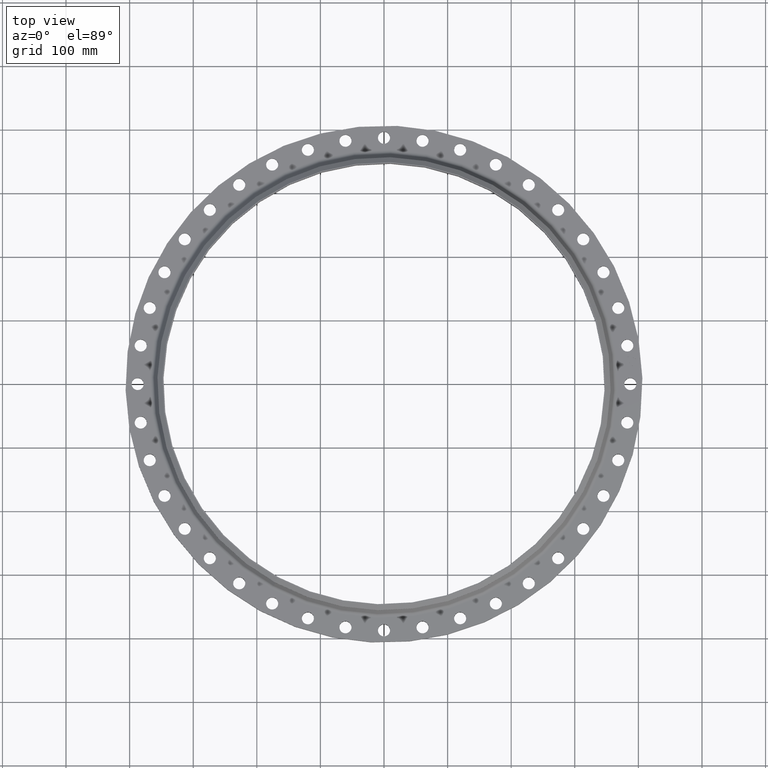
[diagram: clean part render]
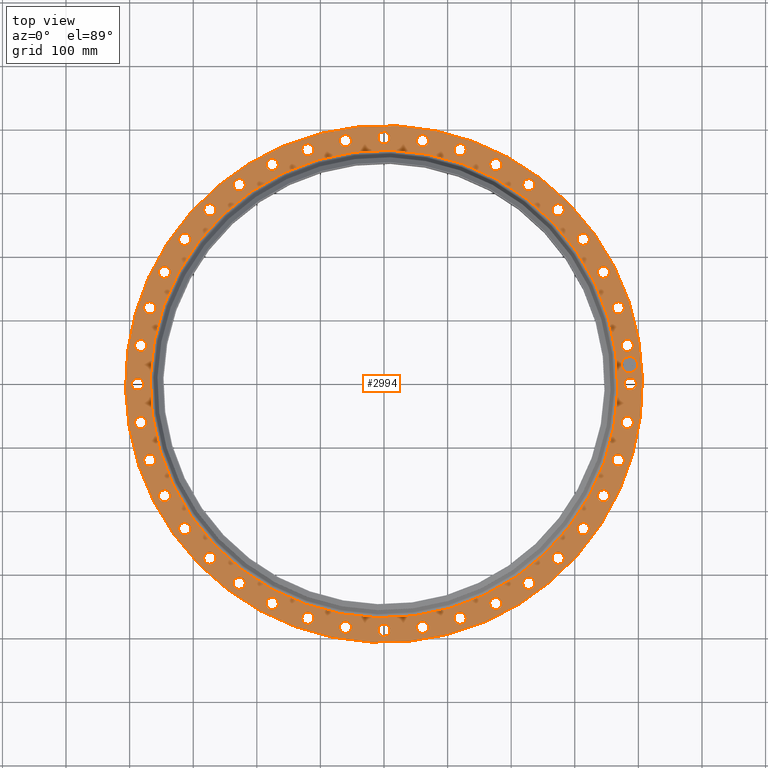
[diagram: same view with one face highlighted and labeled with its STEP entity id]
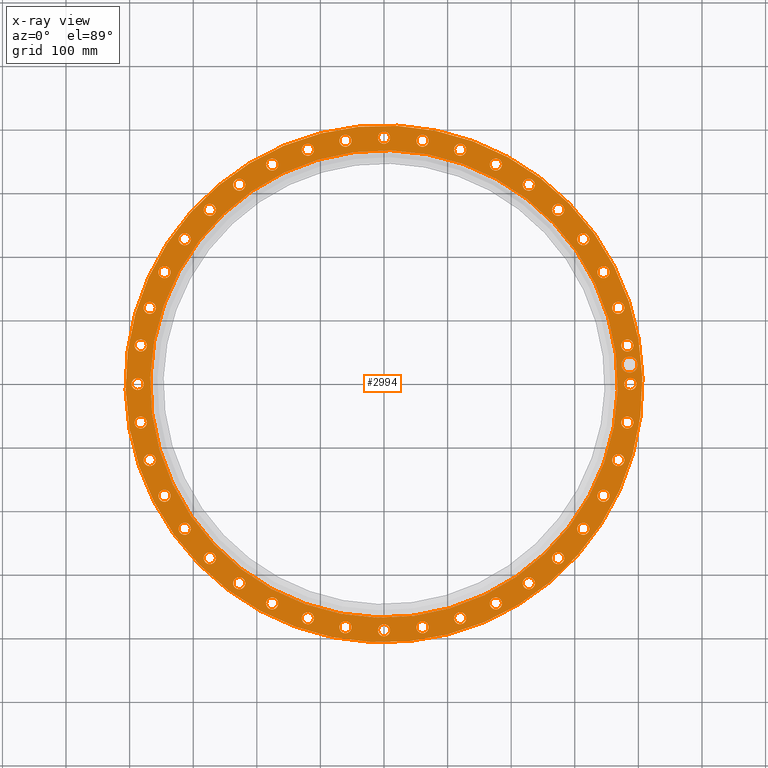
[diagram: x-ray of the same camera — body ghosted, the highlighted face saturated]
A machine part, top view. The second image highlights one B-rep face of the part: STEP entity #2994.
The next image is the same camera in x-ray: the body ghosted, the highlighted face saturated — about 0% of this face is hidden behind the body in this view.
In plain terms, the highlighted planar face has unit normal (0, 0, -1).
Its self-contained STEP definition (entity closure, byte-faithful):
#65=AXIS2_PLACEMENT_3D('Circle Axis2P3D',#63,#64,$) ;
#82=AXIS2_PLACEMENT_3D('Circle Axis2P3D',#80,#81,$) ;
#115=AXIS2_PLACEMENT_3D('Circle Axis2P3D',#113,#114,$) ;
#139=AXIS2_PLACEMENT_3D('Circle Axis2P3D',#137,#138,$) ;
#156=AXIS2_PLACEMENT_3D('Circle Axis2P3D',#154,#155,$) ;
#191=AXIS2_PLACEMENT_3D('Circle Axis2P3D',#189,#190,$) ;
#1147=AXIS2_PLACEMENT_3D('Circle Axis2P3D',#1145,#1146,$) ;
#1159=AXIS2_PLACEMENT_3D('Circle Axis2P3D',#1157,#1158,$) ;
#1190=AXIS2_PLACEMENT_3D('Circle Axis2P3D',#1188,#1189,$) ;
#1202=AXIS2_PLACEMENT_3D('Circle Axis2P3D',#1200,#1201,$) ;
#1233=AXIS2_PLACEMENT_3D('Circle Axis2P3D',#1231,#1232,$) ;
#1245=AXIS2_PLACEMENT_3D('Circle Axis2P3D',#1243,#1244,$) ;
#1276=AXIS2_PLACEMENT_3D('Circle Axis2P3D',#1274,#1275,$) ;
#1288=AXIS2_PLACEMENT_3D('Circle Axis2P3D',#1286,#1287,$) ;
#1319=AXIS2_PLACEMENT_3D('Circle Axis2P3D',#1317,#1318,$) ;
#1331=AXIS2_PLACEMENT_3D('Circle Axis2P3D',#1329,#1330,$) ;
#1362=AXIS2_PLACEMENT_3D('Circle Axis2P3D',#1360,#1361,$) ;
#1374=AXIS2_PLACEMENT_3D('Circle Axis2P3D',#1372,#1373,$) ;
#1405=AXIS2_PLACEMENT_3D('Circle Axis2P3D',#1403,#1404,$) ;
#1417=AXIS2_PLACEMENT_3D('Circle Axis2P3D',#1415,#1416,$) ;
#1448=AXIS2_PLACEMENT_3D('Circle Axis2P3D',#1446,#1447,$) ;
#1460=AXIS2_PLACEMENT_3D('Circle Axis2P3D',#1458,#1459,$) ;
#1491=AXIS2_PLACEMENT_3D('Circle Axis2P3D',#1489,#1490,$) ;
#1503=AXIS2_PLACEMENT_3D('Circle Axis2P3D',#1501,#1502,$) ;
#1534=AXIS2_PLACEMENT_3D('Circle Axis2P3D',#1532,#1533,$) ;
#1546=AXIS2_PLACEMENT_3D('Circle Axis2P3D',#1544,#1545,$) ;
#1577=AXIS2_PLACEMENT_3D('Circle Axis2P3D',#1575,#1576,$) ;
#1589=AXIS2_PLACEMENT_3D('Circle Axis2P3D',#1587,#1588,$) ;
#1620=AXIS2_PLACEMENT_3D('Circle Axis2P3D',#1618,#1619,$) ;
#1632=AXIS2_PLACEMENT_3D('Circle Axis2P3D',#1630,#1631,$) ;
#1663=AXIS2_PLACEMENT_3D('Circle Axis2P3D',#1661,#1662,$) ;
#1675=AXIS2_PLACEMENT_3D('Circle Axis2P3D',#1673,#1674,$) ;
#1706=AXIS2_PLACEMENT_3D('Circle Axis2P3D',#1704,#1705,$) ;
#1718=AXIS2_PLACEMENT_3D('Circle Axis2P3D',#1716,#1717,$) ;
#1749=AXIS2_PLACEMENT_3D('Circle Axis2P3D',#1747,#1748,$) ;
#1761=AXIS2_PLACEMENT_3D('Circle Axis2P3D',#1759,#1760,$) ;
#1792=AXIS2_PLACEMENT_3D('Circle Axis2P3D',#1790,#1791,$) ;
#1804=AXIS2_PLACEMENT_3D('Circle Axis2P3D',#1802,#1803,$) ;
#1835=AXIS2_PLACEMENT_3D('Circle Axis2P3D',#1833,#1834,$) ;
#1847=AXIS2_PLACEMENT_3D('Circle Axis2P3D',#1845,#1846,$) ;
#1878=AXIS2_PLACEMENT_3D('Circle Axis2P3D',#1876,#1877,$) ;
#1890=AXIS2_PLACEMENT_3D('Circle Axis2P3D',#1888,#1889,$) ;
#1921=AXIS2_PLACEMENT_3D('Circle Axis2P3D',#1919,#1920,$) ;
#1933=AXIS2_PLACEMENT_3D('Circle Axis2P3D',#1931,#1932,$) ;
#1964=AXIS2_PLACEMENT_3D('Circle Axis2P3D',#1962,#1963,$) ;
#1976=AXIS2_PLACEMENT_3D('Circle Axis2P3D',#1974,#1975,$) ;
#2007=AXIS2_PLACEMENT_3D('Circle Axis2P3D',#2005,#2006,$) ;
#2019=AXIS2_PLACEMENT_3D('Circle Axis2P3D',#2017,#2018,$) ;
#2050=AXIS2_PLACEMENT_3D('Circle Axis2P3D',#2048,#2049,$) ;
#2062=AXIS2_PLACEMENT_3D('Circle Axis2P3D',#2060,#2061,$) ;
#2093=AXIS2_PLACEMENT_3D('Circle Axis2P3D',#2091,#2092,$) ;
#2105=AXIS2_PLACEMENT_3D('Circle Axis2P3D',#2103,#2104,$) ;
#2136=AXIS2_PLACEMENT_3D('Circle Axis2P3D',#2134,#2135,$) ;
#2148=AXIS2_PLACEMENT_3D('Circle Axis2P3D',#2146,#2147,$) ;
#2179=AXIS2_PLACEMENT_3D('Circle Axis2P3D',#2177,#2178,$) ;
#2191=AXIS2_PLACEMENT_3D('Circle Axis2P3D',#2189,#2190,$) ;
#2222=AXIS2_PLACEMENT_3D('Circle Axis2P3D',#2220,#2221,$) ;
#2234=AXIS2_PLACEMENT_3D('Circle Axis2P3D',#2232,#2233,$) ;
#2265=AXIS2_PLACEMENT_3D('Circle Axis2P3D',#2263,#2264,$) ;
#2277=AXIS2_PLACEMENT_3D('Circle Axis2P3D',#2275,#2276,$) ;
#2308=AXIS2_PLACEMENT_3D('Circle Axis2P3D',#2306,#2307,$) ;
#2320=AXIS2_PLACEMENT_3D('Circle Axis2P3D',#2318,#2319,$) ;
#2351=AXIS2_PLACEMENT_3D('Circle Axis2P3D',#2349,#2350,$) ;
#2363=AXIS2_PLACEMENT_3D('Circle Axis2P3D',#2361,#2362,$) ;
#2394=AXIS2_PLACEMENT_3D('Circle Axis2P3D',#2392,#2393,$) ;
#2406=AXIS2_PLACEMENT_3D('Circle Axis2P3D',#2404,#2405,$) ;
#2437=AXIS2_PLACEMENT_3D('Circle Axis2P3D',#2435,#2436,$) ;
#2449=AXIS2_PLACEMENT_3D('Circle Axis2P3D',#2447,#2448,$) ;
#2480=AXIS2_PLACEMENT_3D('Circle Axis2P3D',#2478,#2479,$) ;
#2492=AXIS2_PLACEMENT_3D('Circle Axis2P3D',#2490,#2491,$) ;
#2523=AXIS2_PLACEMENT_3D('Circle Axis2P3D',#2521,#2522,$) ;
#2535=AXIS2_PLACEMENT_3D('Circle Axis2P3D',#2533,#2534,$) ;
#2566=AXIS2_PLACEMENT_3D('Circle Axis2P3D',#2564,#2565,$) ;
#2578=AXIS2_PLACEMENT_3D('Circle Axis2P3D',#2576,#2577,$) ;
#2609=AXIS2_PLACEMENT_3D('Circle Axis2P3D',#2607,#2608,$) ;
#2621=AXIS2_PLACEMENT_3D('Circle Axis2P3D',#2619,#2620,$) ;
#2652=AXIS2_PLACEMENT_3D('Circle Axis2P3D',#2650,#2651,$) ;
#2664=AXIS2_PLACEMENT_3D('Circle Axis2P3D',#2662,#2663,$) ;
#2695=AXIS2_PLACEMENT_3D('Circle Axis2P3D',#2693,#2694,$) ;
#2707=AXIS2_PLACEMENT_3D('Circle Axis2P3D',#2705,#2706,$) ;
#2738=AXIS2_PLACEMENT_3D('Circle Axis2P3D',#2736,#2737,$) ;
#2750=AXIS2_PLACEMENT_3D('Circle Axis2P3D',#2748,#2749,$) ;
#2781=AXIS2_PLACEMENT_3D('Circle Axis2P3D',#2779,#2780,$) ;
#2793=AXIS2_PLACEMENT_3D('Circle Axis2P3D',#2791,#2792,$) ;
#2806=AXIS2_PLACEMENT_3D('Plane Axis2P3D',#2803,#2804,#2805) ;
#2978=AXIS2_PLACEMENT_3D('Circle Axis2P3D',#2976,#2977,$) ;
#2987=AXIS2_PLACEMENT_3D('Circle Axis2P3D',#2985,#2986,$) ;
#46=CARTESIAN_POINT('Vertex',(14.9209065394,0.179784576977,1.25000000001)) ;
#60=CARTESIAN_POINT('Vertex',(15.5790934608,-0.179784576977,1.25000000001)) ;
#63=CARTESIAN_POINT('Axis2P3D Location',(15.2500000001,0.,1.25000000001)) ;
#80=CARTESIAN_POINT('Axis2P3D Location',(15.2500000001,0.,1.25000000001)) ;
#110=CARTESIAN_POINT('Vertex',(-7.6708086177,-14.0413209903,1.25000000001)) ;
#113=CARTESIAN_POINT('Axis2P3D Location',(0.,0.,1.25000000001)) ;
#117=CARTESIAN_POINT('Vertex',(7.6708086177,14.0413209903,1.25000000001)) ;
#137=CARTESIAN_POINT('Axis2P3D Location',(0.,0.,1.25000000001)) ;
#154=CARTESIAN_POINT('Axis2P3D Location',(0.,0.,1.25000000001)) ;
#158=CARTESIAN_POINT('Vertex',(6.93964355817,12.7029323263,1.25000000001)) ;
#160=CARTESIAN_POINT('Vertex',(-6.93964355817,-12.7029323263,1.25000000001)) ;
#189=CARTESIAN_POINT('Axis2P3D Location',(0.,0.,1.25000000001)) ;
#1135=CARTESIAN_POINT('Vertex',(-14.7653299241,2.1565729019,1.25000000001)) ;
#1142=CARTESIAN_POINT('Vertex',(-15.3591644641,2.61467828185,1.25000000001)) ;
#1145=CARTESIAN_POINT('Axis2P3D Location',(-15.0622471941,2.38562559187,1.25000000001)) ;
#1157=CARTESIAN_POINT('Axis2P3D Location',(-15.0622471941,2.38562559187,1.25000000001)) ;
#1178=CARTESIAN_POINT('Vertex',(14.2461818829,-4.43982839868,1.25000000001)) ;
#1185=CARTESIAN_POINT('Vertex',(14.7610418642,-4.9851899298,1.25000000001)) ;
#1188=CARTESIAN_POINT('Axis2P3D Location',(14.5036118736,-4.71250916424,1.25000000001)) ;
#1200=CARTESIAN_POINT('Axis2P3D Location',(14.5036118736,-4.71250916424,1.25000000001)) ;
#1221=CARTESIAN_POINT('Vertex',(-14.2461818829,4.43982839868,1.25000000001)) ;
#1228=CARTESIAN_POINT('Vertex',(-14.7610418642,4.9851899298,1.25000000001)) ;
#1231=CARTESIAN_POINT('Axis2P3D Location',(-14.5036118736,4.71250916424,1.25000000001)) ;
#1243=CARTESIAN_POINT('Axis2P3D Location',(-14.5036118736,4.71250916424,1.25000000001)) ;
#1264=CARTESIAN_POINT('Vertex',(13.3762455633,-6.61376058533,1.25000000001)) ;
#1271=CARTESIAN_POINT('Vertex',(13.7994534245,-7.23294965678,1.25000000001)) ;
#1274=CARTESIAN_POINT('Axis2P3D Location',(13.5878494939,-6.92335512106,1.25000000001)) ;
#1286=CARTESIAN_POINT('Axis2P3D Location',(13.5878494939,-6.92335512106,1.25000000001)) ;
#1307=CARTESIAN_POINT('Vertex',(-13.3762455633,6.61376058533,1.25000000001)) ;
#1314=CARTESIAN_POINT('Vertex',(-13.7994534245,7.23294965678,1.25000000001)) ;
#1317=CARTESIAN_POINT('Axis2P3D Location',(-13.5878494939,6.92335512106,1.25000000001)) ;
#1329=CARTESIAN_POINT('Axis2P3D Location',(-13.5878494939,6.92335512106,1.25000000001)) ;
#1350=CARTESIAN_POINT('Vertex',(12.1769416848,-8.62484003656,1.25000000001)) ;
#1357=CARTESIAN_POINT('Vertex',(12.4980766438,-9.30261015843,1.25000000001)) ;
#1360=CARTESIAN_POINT('Axis2P3D Location',(12.3375091643,-8.9637250975,1.25000000001)) ;
#1372=CARTESIAN_POINT('Axis2P3D Location',(12.3375091643,-8.9637250975,1.25000000001)) ;
#1393=CARTESIAN_POINT('Vertex',(-12.1769416848,8.62484003656,1.25000000001)) ;
#1400=CARTESIAN_POINT('Vertex',(-12.4980766438,9.30261015843,1.25000000001)) ;
#1403=CARTESIAN_POINT('Axis2P3D Location',(-12.3375091643,8.9637250975,1.25000000001)) ;
#1415=CARTESIAN_POINT('Axis2P3D Location',(-12.3375091643,8.9637250975,1.25000000001)) ;
#1436=CARTESIAN_POINT('Vertex',(10.677801089,-10.4235473019,1.25000000001)) ;
#1443=CARTESIAN_POINT('Vertex',(10.8889557373,-11.1432095244,1.25000000001)) ;
#1446=CARTESIAN_POINT('Axis2P3D Location',(10.7833784131,-10.7833784131,1.25000000001)) ;
#1458=CARTESIAN_POINT('Axis2P3D Location',(10.7833784131,-10.7833784131,1.25000000001)) ;
#1479=CARTESIAN_POINT('Vertex',(-10.677801089,10.4235473019,1.25000000001)) ;
#1486=CARTESIAN_POINT('Vertex',(-10.8889557373,11.1432095244,1.25000000001)) ;
#1489=CARTESIAN_POINT('Axis2P3D Location',(-10.7833784131,10.7833784131,1.25000000001)) ;
#1501=CARTESIAN_POINT('Axis2P3D Location',(-10.7833784131,10.7833784131,1.25000000001)) ;
#1522=CARTESIAN_POINT('Vertex',(8.91573759277,-11.9655922389,1.25000000001)) ;
#1529=CARTESIAN_POINT('Vertex',(9.01171260223,-12.7094260897,1.25000000001)) ;
#1532=CARTESIAN_POINT('Axis2P3D Location',(8.9637250975,-12.3375091643,1.25000000001)) ;
#1544=CARTESIAN_POINT('Axis2P3D Location',(8.9637250975,-12.3375091643,1.25000000001)) ;
#1565=CARTESIAN_POINT('Vertex',(-8.91573759277,11.9655922389,1.25000000001)) ;
#1572=CARTESIAN_POINT('Vertex',(-9.01171260223,12.7094260897,1.25000000001)) ;
#1575=CARTESIAN_POINT('Axis2P3D Location',(-8.9637250975,12.3375091643,1.25000000001)) ;
#1587=CARTESIAN_POINT('Axis2P3D Location',(-8.9637250975,12.3375091643,1.25000000001)) ;
#1608=CARTESIAN_POINT('Vertex',(6.9341390474,-13.2130045834,1.25000000001)) ;
#1615=CARTESIAN_POINT('Vertex',(6.91257119471,-13.9626944044,1.25000000001)) ;
#1618=CARTESIAN_POINT('Axis2P3D Location',(6.92335512106,-13.5878494939,1.25000000001)) ;
#1630=CARTESIAN_POINT('Axis2P3D Location',(6.92335512106,-13.5878494939,1.25000000001)) ;
#1651=CARTESIAN_POINT('Vertex',(-6.9341390474,13.2130045834,1.25000000001)) ;
#1658=CARTESIAN_POINT('Vertex',(-6.91257119471,13.9626944044,1.25000000001)) ;
#1661=CARTESIAN_POINT('Axis2P3D Location',(-6.92335512106,13.5878494939,1.25000000001)) ;
#1673=CARTESIAN_POINT('Axis2P3D Location',(-6.92335512106,13.5878494939,1.25000000001)) ;
#1694=CARTESIAN_POINT('Vertex',(4.7817989856,-14.1350689037,1.25000000001)) ;
#1701=CARTESIAN_POINT('Vertex',(4.64321934287,-14.8721548435,1.25000000001)) ;
#1704=CARTESIAN_POINT('Axis2P3D Location',(4.71250916424,-14.5036118736,1.25000000001)) ;
#1716=CARTESIAN_POINT('Axis2P3D Location',(4.71250916424,-14.5036118736,1.25000000001)) ;
#1737=CARTESIAN_POINT('Vertex',(-4.7817989856,14.1350689037,1.25000000001)) ;
#1744=CARTESIAN_POINT('Vertex',(-4.64321934287,14.8721548435,1.25000000001)) ;
#1747=CARTESIAN_POINT('Axis2P3D Location',(-4.71250916424,14.5036118736,1.25000000001)) ;
#1759=CARTESIAN_POINT('Axis2P3D Location',(-4.71250916424,14.5036118736,1.25000000001)) ;
#1780=CARTESIAN_POINT('Vertex',(2.5117151629,-14.7090809159,1.25000000001)) ;
#1787=CARTESIAN_POINT('Vertex',(2.25953602085,-15.4154134724,1.25000000001)) ;
#1790=CARTESIAN_POINT('Axis2P3D Location',(2.38562559187,-15.0622471941,1.25000000001)) ;
#1802=CARTESIAN_POINT('Axis2P3D Location',(2.38562559187,-15.0622471941,1.25000000001)) ;
#1823=CARTESIAN_POINT('Vertex',(-2.5117151629,14.7090809159,1.25000000001)) ;
#1830=CARTESIAN_POINT('Vertex',(-2.25953602085,15.4154134724,1.25000000001)) ;
#1833=CARTESIAN_POINT('Axis2P3D Location',(-2.38562559187,15.0622471941,1.25000000001)) ;
#1845=CARTESIAN_POINT('Axis2P3D Location',(-2.38562559187,15.0622471941,1.25000000001)) ;
#1866=CARTESIAN_POINT('Vertex',(0.179784576977,-14.9209065394,1.25000000001)) ;
#1873=CARTESIAN_POINT('Vertex',(-0.179784576977,-15.5790934608,1.25000000001)) ;
#1876=CARTESIAN_POINT('Axis2P3D Location',(4.31997340947E-015,-15.2500000001,1.25000000001)) ;
#1888=CARTESIAN_POINT('Axis2P3D Location',(4.31997340947E-015,-15.2500000001,1.25000000001)) ;
#1909=CARTESIAN_POINT('Vertex',(-0.179784576977,14.9209065394,1.25000000001)) ;
#1916=CARTESIAN_POINT('Vertex',(0.179784576977,15.5790934608,1.25000000001)) ;
#1919=CARTESIAN_POINT('Axis2P3D Location',(-1.41081705771E-014,15.2500000001,1.25000000001)) ;
#1931=CARTESIAN_POINT('Axis2P3D Location',(-1.41081705771E-014,15.2500000001,1.25000000001)) ;
#1952=CARTESIAN_POINT('Vertex',(-2.1565729019,-14.7653299241,1.25000000001)) ;
#1959=CARTESIAN_POINT('Vertex',(-2.61467828185,-15.3591644641,1.25000000001)) ;
#1962=CARTESIAN_POINT('Axis2P3D Location',(-2.38562559187,-15.0622471941,1.25000000001)) ;
#1974=CARTESIAN_POINT('Axis2P3D Location',(-2.38562559187,-15.0622471941,1.25000000001)) ;
#1995=CARTESIAN_POINT('Vertex',(2.1565729019,14.7653299241,1.25000000001)) ;
#2002=CARTESIAN_POINT('Vertex',(2.61467828185,15.3591644641,1.25000000001)) ;
#2005=CARTESIAN_POINT('Axis2P3D Location',(2.38562559187,15.0622471941,1.25000000001)) ;
#2017=CARTESIAN_POINT('Axis2P3D Location',(2.38562559187,15.0622471941,1.25000000001)) ;
#2038=CARTESIAN_POINT('Vertex',(-4.43982839868,-14.2461818829,1.25000000001)) ;
#2045=CARTESIAN_POINT('Vertex',(-4.9851899298,-14.7610418642,1.25000000001)) ;
#2048=CARTESIAN_POINT('Axis2P3D Location',(-4.71250916424,-14.5036118736,1.25000000001)) ;
#2060=CARTESIAN_POINT('Axis2P3D Location',(-4.71250916424,-14.5036118736,1.25000000001)) ;
#2081=CARTESIAN_POINT('Vertex',(4.43982839868,14.2461818829,1.25000000001)) ;
#2088=CARTESIAN_POINT('Vertex',(4.9851899298,14.7610418642,1.25000000001)) ;
#2091=CARTESIAN_POINT('Axis2P3D Location',(4.71250916424,14.5036118736,1.25000000001)) ;
#2103=CARTESIAN_POINT('Axis2P3D Location',(4.71250916424,14.5036118736,1.25000000001)) ;
#2124=CARTESIAN_POINT('Vertex',(-6.61376058533,-13.3762455633,1.25000000001)) ;
#2131=CARTESIAN_POINT('Vertex',(-7.23294965678,-13.7994534245,1.25000000001)) ;
#2134=CARTESIAN_POINT('Axis2P3D Location',(-6.92335512106,-13.5878494939,1.25000000001)) ;
#2146=CARTESIAN_POINT('Axis2P3D Location',(-6.92335512106,-13.5878494939,1.25000000001)) ;
#2167=CARTESIAN_POINT('Vertex',(6.61376058533,13.3762455633,1.25000000001)) ;
#2174=CARTESIAN_POINT('Vertex',(7.23294965678,13.7994534245,1.25000000001)) ;
#2177=CARTESIAN_POINT('Axis2P3D Location',(6.92335512106,13.5878494939,1.25000000001)) ;
#2189=CARTESIAN_POINT('Axis2P3D Location',(6.92335512106,13.5878494939,1.25000000001)) ;
#2210=CARTESIAN_POINT('Vertex',(-8.62484003656,-12.1769416848,1.25000000001)) ;
#2217=CARTESIAN_POINT('Vertex',(-9.30261015843,-12.4980766438,1.25000000001)) ;
#2220=CARTESIAN_POINT('Axis2P3D Location',(-8.9637250975,-12.3375091643,1.25000000001)) ;
#2232=CARTESIAN_POINT('Axis2P3D Location',(-8.9637250975,-12.3375091643,1.25000000001)) ;
#2253=CARTESIAN_POINT('Vertex',(8.62484003656,12.1769416848,1.25000000001)) ;
#2260=CARTESIAN_POINT('Vertex',(9.30261015843,12.4980766438,1.25000000001)) ;
#2263=CARTESIAN_POINT('Axis2P3D Location',(8.9637250975,12.3375091643,1.25000000001)) ;
#2275=CARTESIAN_POINT('Axis2P3D Location',(8.9637250975,12.3375091643,1.25000000001)) ;
#2296=CARTESIAN_POINT('Vertex',(-10.4235473019,-10.677801089,1.25000000001)) ;
#2303=CARTESIAN_POINT('Vertex',(-11.1432095244,-10.8889557373,1.25000000001)) ;
#2306=CARTESIAN_POINT('Axis2P3D Location',(-10.7833784131,-10.7833784131,1.25000000001)) ;
#2318=CARTESIAN_POINT('Axis2P3D Location',(-10.7833784131,-10.7833784131,1.25000000001)) ;
#2339=CARTESIAN_POINT('Vertex',(10.4235473019,10.677801089,1.25000000001)) ;
#2346=CARTESIAN_POINT('Vertex',(11.1432095244,10.8889557373,1.25000000001)) ;
#2349=CARTESIAN_POINT('Axis2P3D Location',(10.7833784131,10.7833784131,1.25000000001)) ;
#2361=CARTESIAN_POINT('Axis2P3D Location',(10.7833784131,10.7833784131,1.25000000001)) ;
#2382=CARTESIAN_POINT('Vertex',(-11.9655922389,-8.91573759277,1.25000000001)) ;
#2389=CARTESIAN_POINT('Vertex',(-12.7094260897,-9.01171260223,1.25000000001)) ;
#2392=CARTESIAN_POINT('Axis2P3D Location',(-12.3375091643,-8.9637250975,1.25000000001)) ;
#2404=CARTESIAN_POINT('Axis2P3D Location',(-12.3375091643,-8.9637250975,1.25000000001)) ;
#2425=CARTESIAN_POINT('Vertex',(11.9655922389,8.91573759277,1.25000000001)) ;
#2432=CARTESIAN_POINT('Vertex',(12.7094260897,9.01171260223,1.25000000001)) ;
#2435=CARTESIAN_POINT('Axis2P3D Location',(12.3375091643,8.9637250975,1.25000000001)) ;
#2447=CARTESIAN_POINT('Axis2P3D Location',(12.3375091643,8.9637250975,1.25000000001)) ;
#2468=CARTESIAN_POINT('Vertex',(-13.2130045834,-6.9341390474,1.25000000001)) ;
#2475=CARTESIAN_POINT('Vertex',(-13.9626944044,-6.91257119471,1.25000000001)) ;
#2478=CARTESIAN_POINT('Axis2P3D Location',(-13.5878494939,-6.92335512106,1.25000000001)) ;
#2490=CARTESIAN_POINT('Axis2P3D Location',(-13.5878494939,-6.92335512106,1.25000000001)) ;
#2511=CARTESIAN_POINT('Vertex',(13.2130045834,6.9341390474,1.25000000001)) ;
#2518=CARTESIAN_POINT('Vertex',(13.9626944044,6.91257119471,1.25000000001)) ;
#2521=CARTESIAN_POINT('Axis2P3D Location',(13.5878494939,6.92335512106,1.25000000001)) ;
#2533=CARTESIAN_POINT('Axis2P3D Location',(13.5878494939,6.92335512106,1.25000000001)) ;
#2554=CARTESIAN_POINT('Vertex',(-14.1350689037,-4.7817989856,1.25000000001)) ;
#2561=CARTESIAN_POINT('Vertex',(-14.8721548435,-4.64321934287,1.25000000001)) ;
#2564=CARTESIAN_POINT('Axis2P3D Location',(-14.5036118736,-4.71250916424,1.25000000001)) ;
#2576=CARTESIAN_POINT('Axis2P3D Location',(-14.5036118736,-4.71250916424,1.25000000001)) ;
#2597=CARTESIAN_POINT('Vertex',(14.1350689037,4.7817989856,1.25000000001)) ;
#2604=CARTESIAN_POINT('Vertex',(14.8721548435,4.64321934287,1.25000000001)) ;
#2607=CARTESIAN_POINT('Axis2P3D Location',(14.5036118736,4.71250916424,1.25000000001)) ;
#2619=CARTESIAN_POINT('Axis2P3D Location',(14.5036118736,4.71250916424,1.25000000001)) ;
#2640=CARTESIAN_POINT('Vertex',(-14.7090809159,-2.5117151629,1.25000000001)) ;
#2647=CARTESIAN_POINT('Vertex',(-15.4154134724,-2.25953602085,1.25000000001)) ;
#2650=CARTESIAN_POINT('Axis2P3D Location',(-15.0622471941,-2.38562559187,1.25000000001)) ;
#2662=CARTESIAN_POINT('Axis2P3D Location',(-15.0622471941,-2.38562559187,1.25000000001)) ;
#2683=CARTESIAN_POINT('Vertex',(14.7090809159,2.5117151629,1.25000000001)) ;
#2690=CARTESIAN_POINT('Vertex',(15.4154134724,2.25953602085,1.25000000001)) ;
#2693=CARTESIAN_POINT('Axis2P3D Location',(15.0622471941,2.38562559187,1.25000000001)) ;
#2705=CARTESIAN_POINT('Axis2P3D Location',(15.0622471941,2.38562559187,1.25000000001)) ;
#2726=CARTESIAN_POINT('Vertex',(-14.9209065394,-0.179784576977,1.25000000001)) ;
#2733=CARTESIAN_POINT('Vertex',(-15.5790934608,0.179784576977,1.25000000001)) ;
#2736=CARTESIAN_POINT('Axis2P3D Location',(-15.2500000001,-8.63994681895E-015,1.25000000001)) ;
#2748=CARTESIAN_POINT('Axis2P3D Location',(-15.2500000001,-8.63994681895E-015,1.25000000001)) ;
#2769=CARTESIAN_POINT('Vertex',(14.7653299241,-2.1565729019,1.25000000001)) ;
#2776=CARTESIAN_POINT('Vertex',(15.3591644641,-2.61467828185,1.25000000001)) ;
#2779=CARTESIAN_POINT('Axis2P3D Location',(15.0622471941,-2.38562559187,1.25000000001)) ;
#2791=CARTESIAN_POINT('Axis2P3D Location',(15.0622471941,-2.38562559187,1.25000000001)) ;
#2803=CARTESIAN_POINT('Axis2P3D Location',(0.,16.0000000001,1.25000000001)) ;
#2976=CARTESIAN_POINT('Axis2P3D Location',(15.2029893395,1.19650120985,1.25000000001)) ;
#2980=CARTESIAN_POINT('Vertex',(15.1637598815,1.69495873425,1.25000000001)) ;
#2982=CARTESIAN_POINT('Vertex',(15.2422187974,0.698043685456,1.25000000001)) ;
#2985=CARTESIAN_POINT('Axis2P3D Location',(15.2029893395,1.19650120985,1.25000000001)) ;
#64=DIRECTION('Axis2P3D Direction',(0.,-0.,-0.0393700787402)) ;
#81=DIRECTION('Axis2P3D Direction',(0.,-0.,-0.0393700787402)) ;
#114=DIRECTION('Axis2P3D Direction',(0.,0.,-0.0393700787402)) ;
#138=DIRECTION('Axis2P3D Direction',(0.,0.,-0.0393700787402)) ;
#155=DIRECTION('Axis2P3D Direction',(0.,0.,-0.0393700787402)) ;
#190=DIRECTION('Axis2P3D Direction',(0.,0.,-0.0393700787402)) ;
#1146=DIRECTION('Axis2P3D Direction',(0.,0.,-0.0393700787402)) ;
#1158=DIRECTION('Axis2P3D Direction',(0.,0.,-0.0393700787402)) ;
#1189=DIRECTION('Axis2P3D Direction',(0.,-0.,-0.0393700787402)) ;
#1201=DIRECTION('Axis2P3D Direction',(0.,-0.,-0.0393700787402)) ;
#1232=DIRECTION('Axis2P3D Direction',(0.,0.,-0.0393700787402)) ;
#1244=DIRECTION('Axis2P3D Direction',(0.,0.,-0.0393700787402)) ;
#1275=DIRECTION('Axis2P3D Direction',(0.,-0.,-0.0393700787402)) ;
#1287=DIRECTION('Axis2P3D Direction',(0.,-0.,-0.0393700787402)) ;
#1318=DIRECTION('Axis2P3D Direction',(0.,0.,-0.0393700787402)) ;
#1330=DIRECTION('Axis2P3D Direction',(0.,0.,-0.0393700787402)) ;
#1361=DIRECTION('Axis2P3D Direction',(0.,-0.,-0.0393700787402)) ;
#1373=DIRECTION('Axis2P3D Direction',(0.,-0.,-0.0393700787402)) ;
#1404=DIRECTION('Axis2P3D Direction',(0.,0.,-0.0393700787402)) ;
#1416=DIRECTION('Axis2P3D Direction',(0.,0.,-0.0393700787402)) ;
#1447=DIRECTION('Axis2P3D Direction',(0.,-0.,-0.0393700787402)) ;
#1459=DIRECTION('Axis2P3D Direction',(0.,-0.,-0.0393700787402)) ;
#1490=DIRECTION('Axis2P3D Direction',(0.,0.,-0.0393700787402)) ;
#1502=DIRECTION('Axis2P3D Direction',(0.,0.,-0.0393700787402)) ;
#1533=DIRECTION('Axis2P3D Direction',(0.,-0.,-0.0393700787402)) ;
#1545=DIRECTION('Axis2P3D Direction',(0.,-0.,-0.0393700787402)) ;
#1576=DIRECTION('Axis2P3D Direction',(0.,0.,-0.0393700787402)) ;
#1588=DIRECTION('Axis2P3D Direction',(0.,0.,-0.0393700787402)) ;
#1619=DIRECTION('Axis2P3D Direction',(0.,-0.,-0.0393700787402)) ;
#1631=DIRECTION('Axis2P3D Direction',(0.,-0.,-0.0393700787402)) ;
#1662=DIRECTION('Axis2P3D Direction',(0.,0.,-0.0393700787402)) ;
#1674=DIRECTION('Axis2P3D Direction',(0.,0.,-0.0393700787402)) ;
#1705=DIRECTION('Axis2P3D Direction',(0.,-0.,-0.0393700787402)) ;
#1717=DIRECTION('Axis2P3D Direction',(0.,-0.,-0.0393700787402)) ;
#1748=DIRECTION('Axis2P3D Direction',(0.,0.,-0.0393700787402)) ;
#1760=DIRECTION('Axis2P3D Direction',(0.,0.,-0.0393700787402)) ;
#1791=DIRECTION('Axis2P3D Direction',(0.,-0.,-0.0393700787402)) ;
#1803=DIRECTION('Axis2P3D Direction',(0.,-0.,-0.0393700787402)) ;
#1834=DIRECTION('Axis2P3D Direction',(0.,0.,-0.0393700787402)) ;
#1846=DIRECTION('Axis2P3D Direction',(0.,0.,-0.0393700787402)) ;
#1877=DIRECTION('Axis2P3D Direction',(0.,-0.,-0.0393700787402)) ;
#1889=DIRECTION('Axis2P3D Direction',(0.,-0.,-0.0393700787402)) ;
#1920=DIRECTION('Axis2P3D Direction',(0.,0.,-0.0393700787402)) ;
#1932=DIRECTION('Axis2P3D Direction',(0.,0.,-0.0393700787402)) ;
#1963=DIRECTION('Axis2P3D Direction',(-0.,0.,-0.0393700787402)) ;
#1975=DIRECTION('Axis2P3D Direction',(-0.,0.,-0.0393700787402)) ;
#2006=DIRECTION('Axis2P3D Direction',(0.,0.,-0.0393700787402)) ;
#2018=DIRECTION('Axis2P3D Direction',(0.,0.,-0.0393700787402)) ;
#2049=DIRECTION('Axis2P3D Direction',(-0.,0.,-0.0393700787402)) ;
#2061=DIRECTION('Axis2P3D Direction',(-0.,0.,-0.0393700787402)) ;
#2092=DIRECTION('Axis2P3D Direction',(0.,0.,-0.0393700787402)) ;
#2104=DIRECTION('Axis2P3D Direction',(0.,0.,-0.0393700787402)) ;
#2135=DIRECTION('Axis2P3D Direction',(-0.,0.,-0.0393700787402)) ;
#2147=DIRECTION('Axis2P3D Direction',(-0.,0.,-0.0393700787402)) ;
#2178=DIRECTION('Axis2P3D Direction',(0.,0.,-0.0393700787402)) ;
#2190=DIRECTION('Axis2P3D Direction',(0.,0.,-0.0393700787402)) ;
#2221=DIRECTION('Axis2P3D Direction',(-0.,0.,-0.0393700787402)) ;
#2233=DIRECTION('Axis2P3D Direction',(-0.,0.,-0.0393700787402)) ;
#2264=DIRECTION('Axis2P3D Direction',(0.,0.,-0.0393700787402)) ;
#2276=DIRECTION('Axis2P3D Direction',(0.,0.,-0.0393700787402)) ;
#2307=DIRECTION('Axis2P3D Direction',(-0.,0.,-0.0393700787402)) ;
#2319=DIRECTION('Axis2P3D Direction',(-0.,0.,-0.0393700787402)) ;
#2350=DIRECTION('Axis2P3D Direction',(0.,0.,-0.0393700787402)) ;
#2362=DIRECTION('Axis2P3D Direction',(0.,0.,-0.0393700787402)) ;
#2393=DIRECTION('Axis2P3D Direction',(-0.,0.,-0.0393700787402)) ;
#2405=DIRECTION('Axis2P3D Direction',(-0.,0.,-0.0393700787402)) ;
#2436=DIRECTION('Axis2P3D Direction',(0.,0.,-0.0393700787402)) ;
#2448=DIRECTION('Axis2P3D Direction',(0.,0.,-0.0393700787402)) ;
#2479=DIRECTION('Axis2P3D Direction',(-0.,0.,-0.0393700787402)) ;
#2491=DIRECTION('Axis2P3D Direction',(-0.,0.,-0.0393700787402)) ;
#2522=DIRECTION('Axis2P3D Direction',(0.,0.,-0.0393700787402)) ;
#2534=DIRECTION('Axis2P3D Direction',(0.,0.,-0.0393700787402)) ;
#2565=DIRECTION('Axis2P3D Direction',(-0.,0.,-0.0393700787402)) ;
#2577=DIRECTION('Axis2P3D Direction',(-0.,0.,-0.0393700787402)) ;
#2608=DIRECTION('Axis2P3D Direction',(0.,0.,-0.0393700787402)) ;
#2620=DIRECTION('Axis2P3D Direction',(0.,0.,-0.0393700787402)) ;
#2651=DIRECTION('Axis2P3D Direction',(-0.,0.,-0.0393700787402)) ;
#2663=DIRECTION('Axis2P3D Direction',(-0.,0.,-0.0393700787402)) ;
#2694=DIRECTION('Axis2P3D Direction',(0.,0.,-0.0393700787402)) ;
#2706=DIRECTION('Axis2P3D Direction',(0.,0.,-0.0393700787402)) ;
#2737=DIRECTION('Axis2P3D Direction',(-0.,0.,-0.0393700787402)) ;
#2749=DIRECTION('Axis2P3D Direction',(-0.,0.,-0.0393700787402)) ;
#2780=DIRECTION('Axis2P3D Direction',(0.,-0.,-0.0393700787402)) ;
#2792=DIRECTION('Axis2P3D Direction',(0.,-0.,-0.0393700787402)) ;
#2804=DIRECTION('Axis2P3D Direction',(0.,0.,-0.0393700787402)) ;
#2805=DIRECTION('Axis2P3D XDirection',(0.0393700787402,0.,0.)) ;
#2977=DIRECTION('Axis2P3D Direction',(0.,0.,-0.0393700787402)) ;
#2986=DIRECTION('Axis2P3D Direction',(0.,0.,-0.0393700787402)) ;
#2809=ORIENTED_EDGE('',*,*,#141,.F.) ;
#2810=ORIENTED_EDGE('',*,*,#119,.F.) ;
#2813=ORIENTED_EDGE('',*,*,#67,.T.) ;
#2814=ORIENTED_EDGE('',*,*,#84,.T.) ;
#2817=ORIENTED_EDGE('',*,*,#193,.T.) ;
#2818=ORIENTED_EDGE('',*,*,#162,.T.) ;
#2821=ORIENTED_EDGE('',*,*,#2795,.T.) ;
#2822=ORIENTED_EDGE('',*,*,#2783,.T.) ;
#2825=ORIENTED_EDGE('',*,*,#1204,.T.) ;
#2826=ORIENTED_EDGE('',*,*,#1192,.T.) ;
#2829=ORIENTED_EDGE('',*,*,#1290,.T.) ;
#2830=ORIENTED_EDGE('',*,*,#1278,.T.) ;
#2833=ORIENTED_EDGE('',*,*,#1376,.T.) ;
#2834=ORIENTED_EDGE('',*,*,#1364,.T.) ;
#2837=ORIENTED_EDGE('',*,*,#1462,.T.) ;
#2838=ORIENTED_EDGE('',*,*,#1450,.T.) ;
#2841=ORIENTED_EDGE('',*,*,#1548,.T.) ;
#2842=ORIENTED_EDGE('',*,*,#1536,.T.) ;
#2845=ORIENTED_EDGE('',*,*,#1634,.T.) ;
#2846=ORIENTED_EDGE('',*,*,#1622,.T.) ;
#2849=ORIENTED_EDGE('',*,*,#1720,.T.) ;
#2850=ORIENTED_EDGE('',*,*,#1708,.T.) ;
#2853=ORIENTED_EDGE('',*,*,#1806,.T.) ;
#2854=ORIENTED_EDGE('',*,*,#1794,.T.) ;
#2857=ORIENTED_EDGE('',*,*,#1892,.T.) ;
#2858=ORIENTED_EDGE('',*,*,#1880,.T.) ;
#2861=ORIENTED_EDGE('',*,*,#1978,.T.) ;
#2862=ORIENTED_EDGE('',*,*,#1966,.T.) ;
#2865=ORIENTED_EDGE('',*,*,#2064,.T.) ;
#2866=ORIENTED_EDGE('',*,*,#2052,.T.) ;
#2869=ORIENTED_EDGE('',*,*,#2150,.T.) ;
#2870=ORIENTED_EDGE('',*,*,#2138,.T.) ;
#2873=ORIENTED_EDGE('',*,*,#2236,.T.) ;
#2874=ORIENTED_EDGE('',*,*,#2224,.T.) ;
#2877=ORIENTED_EDGE('',*,*,#2322,.T.) ;
#2878=ORIENTED_EDGE('',*,*,#2310,.T.) ;
#2881=ORIENTED_EDGE('',*,*,#2408,.T.) ;
#2882=ORIENTED_EDGE('',*,*,#2396,.T.) ;
#2885=ORIENTED_EDGE('',*,*,#2494,.T.) ;
#2886=ORIENTED_EDGE('',*,*,#2482,.T.) ;
#2889=ORIENTED_EDGE('',*,*,#2580,.T.) ;
#2890=ORIENTED_EDGE('',*,*,#2568,.T.) ;
#2893=ORIENTED_EDGE('',*,*,#2666,.T.) ;
#2894=ORIENTED_EDGE('',*,*,#2654,.T.) ;
#2897=ORIENTED_EDGE('',*,*,#2752,.T.) ;
#2898=ORIENTED_EDGE('',*,*,#2740,.T.) ;
#2901=ORIENTED_EDGE('',*,*,#1161,.T.) ;
#2902=ORIENTED_EDGE('',*,*,#1149,.T.) ;
#2905=ORIENTED_EDGE('',*,*,#1247,.T.) ;
#2906=ORIENTED_EDGE('',*,*,#1235,.T.) ;
#2909=ORIENTED_EDGE('',*,*,#1333,.T.) ;
#2910=ORIENTED_EDGE('',*,*,#1321,.T.) ;
#2913=ORIENTED_EDGE('',*,*,#1419,.T.) ;
#2914=ORIENTED_EDGE('',*,*,#1407,.T.) ;
#2917=ORIENTED_EDGE('',*,*,#1505,.T.) ;
#2918=ORIENTED_EDGE('',*,*,#1493,.T.) ;
#2921=ORIENTED_EDGE('',*,*,#1591,.T.) ;
#2922=ORIENTED_EDGE('',*,*,#1579,.T.) ;
#2925=ORIENTED_EDGE('',*,*,#1677,.T.) ;
#2926=ORIENTED_EDGE('',*,*,#1665,.T.) ;
#2929=ORIENTED_EDGE('',*,*,#1763,.T.) ;
#2930=ORIENTED_EDGE('',*,*,#1751,.T.) ;
#2933=ORIENTED_EDGE('',*,*,#1849,.T.) ;
#2934=ORIENTED_EDGE('',*,*,#1837,.T.) ;
#2937=ORIENTED_EDGE('',*,*,#1935,.T.) ;
#2938=ORIENTED_EDGE('',*,*,#1923,.T.) ;
#2941=ORIENTED_EDGE('',*,*,#2021,.T.) ;
#2942=ORIENTED_EDGE('',*,*,#2009,.T.) ;
#2945=ORIENTED_EDGE('',*,*,#2107,.T.) ;
#2946=ORIENTED_EDGE('',*,*,#2095,.T.) ;
#2949=ORIENTED_EDGE('',*,*,#2193,.T.) ;
#2950=ORIENTED_EDGE('',*,*,#2181,.T.) ;
#2953=ORIENTED_EDGE('',*,*,#2279,.T.) ;
#2954=ORIENTED_EDGE('',*,*,#2267,.T.) ;
#2957=ORIENTED_EDGE('',*,*,#2365,.T.) ;
#2958=ORIENTED_EDGE('',*,*,#2353,.T.) ;
#2961=ORIENTED_EDGE('',*,*,#2451,.T.) ;
#2962=ORIENTED_EDGE('',*,*,#2439,.T.) ;
#2965=ORIENTED_EDGE('',*,*,#2537,.T.) ;
#2966=ORIENTED_EDGE('',*,*,#2525,.T.) ;
#2969=ORIENTED_EDGE('',*,*,#2623,.T.) ;
#2970=ORIENTED_EDGE('',*,*,#2611,.T.) ;
#2973=ORIENTED_EDGE('',*,*,#2709,.T.) ;
#2974=ORIENTED_EDGE('',*,*,#2697,.T.) ;
#2991=ORIENTED_EDGE('',*,*,#2984,.T.) ;
#2992=ORIENTED_EDGE('',*,*,#2989,.T.) ;
#2815=FACE_BOUND('',#2812,.T.) ;
#2819=FACE_BOUND('',#2816,.T.) ;
#2823=FACE_BOUND('',#2820,.T.) ;
#2827=FACE_BOUND('',#2824,.T.) ;
#2831=FACE_BOUND('',#2828,.T.) ;
#2835=FACE_BOUND('',#2832,.T.) ;
#2839=FACE_BOUND('',#2836,.T.) ;
#2843=FACE_BOUND('',#2840,.T.) ;
#2847=FACE_BOUND('',#2844,.T.) ;
#2851=FACE_BOUND('',#2848,.T.) ;
#2855=FACE_BOUND('',#2852,.T.) ;
#2859=FACE_BOUND('',#2856,.T.) ;
#2863=FACE_BOUND('',#2860,.T.) ;
#2867=FACE_BOUND('',#2864,.T.) ;
#2871=FACE_BOUND('',#2868,.T.) ;
#2875=FACE_BOUND('',#2872,.T.) ;
#2879=FACE_BOUND('',#2876,.T.) ;
#2883=FACE_BOUND('',#2880,.T.) ;
#2887=FACE_BOUND('',#2884,.T.) ;
#2891=FACE_BOUND('',#2888,.T.) ;
#2895=FACE_BOUND('',#2892,.T.) ;
#2899=FACE_BOUND('',#2896,.T.) ;
#2903=FACE_BOUND('',#2900,.T.) ;
#2907=FACE_BOUND('',#2904,.T.) ;
#2911=FACE_BOUND('',#2908,.T.) ;
#2915=FACE_BOUND('',#2912,.T.) ;
#2919=FACE_BOUND('',#2916,.T.) ;
#2923=FACE_BOUND('',#2920,.T.) ;
#2927=FACE_BOUND('',#2924,.T.) ;
#2931=FACE_BOUND('',#2928,.T.) ;
#2935=FACE_BOUND('',#2932,.T.) ;
#2939=FACE_BOUND('',#2936,.T.) ;
#2943=FACE_BOUND('',#2940,.T.) ;
#2947=FACE_BOUND('',#2944,.T.) ;
#2951=FACE_BOUND('',#2948,.T.) ;
#2955=FACE_BOUND('',#2952,.T.) ;
#2959=FACE_BOUND('',#2956,.T.) ;
#2963=FACE_BOUND('',#2960,.T.) ;
#2967=FACE_BOUND('',#2964,.T.) ;
#2971=FACE_BOUND('',#2968,.T.) ;
#2975=FACE_BOUND('',#2972,.T.) ;
#2993=FACE_BOUND('',#2990,.T.) ;
#2994=ADVANCED_FACE('PartBody',(#2811,#2815,#2819,#2823,#2827,#2831,#2835,#2839,#2843,#2847,#2851,#2855,#2859,#2863,#2867,#2871,#2875,#2879,#2883,#2887,#2891,#2895,#2899,#2903,#2907,#2911,#2915,#2919,#2923,#2927,#2931,#2935,#2939,#2943,#2947,#2951,#2955,#2959,#2963,#2967,#2971,#2975,#2993),#2807,.F.) ;
#66=CIRCLE('generated circle',#65,0.375000000002) ;
#83=CIRCLE('generated circle',#82,0.375000000002) ;
#116=CIRCLE('generated circle',#115,16.0000000001) ;
#140=CIRCLE('generated circle',#139,16.0000000001) ;
#157=CIRCLE('generated circle',#156,14.474914245) ;
#192=CIRCLE('generated circle',#191,14.474914245) ;
#1148=CIRCLE('generated circle',#1147,0.375000000002) ;
#1160=CIRCLE('generated circle',#1159,0.375000000002) ;
#1191=CIRCLE('generated circle',#1190,0.375000000002) ;
#1203=CIRCLE('generated circle',#1202,0.375000000002) ;
#1234=CIRCLE('generated circle',#1233,0.375000000002) ;
#1246=CIRCLE('generated circle',#1245,0.375000000002) ;
#1277=CIRCLE('generated circle',#1276,0.375000000002) ;
#1289=CIRCLE('generated circle',#1288,0.375000000002) ;
#1320=CIRCLE('generated circle',#1319,0.375000000002) ;
#1332=CIRCLE('generated circle',#1331,0.375000000002) ;
#1363=CIRCLE('generated circle',#1362,0.375000000002) ;
#1375=CIRCLE('generated circle',#1374,0.375000000002) ;
#1406=CIRCLE('generated circle',#1405,0.375000000002) ;
#1418=CIRCLE('generated circle',#1417,0.375000000002) ;
#1449=CIRCLE('generated circle',#1448,0.375000000002) ;
#1461=CIRCLE('generated circle',#1460,0.375000000002) ;
#1492=CIRCLE('generated circle',#1491,0.375000000001) ;
#1504=CIRCLE('generated circle',#1503,0.375000000001) ;
#1535=CIRCLE('generated circle',#1534,0.375000000002) ;
#1547=CIRCLE('generated circle',#1546,0.375000000002) ;
#1578=CIRCLE('generated circle',#1577,0.375000000002) ;
#1590=CIRCLE('generated circle',#1589,0.375000000002) ;
#1621=CIRCLE('generated circle',#1620,0.375000000002) ;
#1633=CIRCLE('generated circle',#1632,0.375000000002) ;
#1664=CIRCLE('generated circle',#1663,0.375000000002) ;
#1676=CIRCLE('generated circle',#1675,0.375000000002) ;
#1707=CIRCLE('generated circle',#1706,0.375000000002) ;
#1719=CIRCLE('generated circle',#1718,0.375000000002) ;
#1750=CIRCLE('generated circle',#1749,0.375000000002) ;
#1762=CIRCLE('generated circle',#1761,0.375000000002) ;
#1793=CIRCLE('generated circle',#1792,0.375000000002) ;
#1805=CIRCLE('generated circle',#1804,0.375000000002) ;
#1836=CIRCLE('generated circle',#1835,0.375000000002) ;
#1848=CIRCLE('generated circle',#1847,0.375000000002) ;
#1879=CIRCLE('generated circle',#1878,0.375000000002) ;
#1891=CIRCLE('generated circle',#1890,0.375000000002) ;
#1922=CIRCLE('generated circle',#1921,0.375000000002) ;
#1934=CIRCLE('generated circle',#1933,0.375000000002) ;
#1965=CIRCLE('generated circle',#1964,0.375000000002) ;
#1977=CIRCLE('generated circle',#1976,0.375000000002) ;
#2008=CIRCLE('generated circle',#2007,0.375000000002) ;
#2020=CIRCLE('generated circle',#2019,0.375000000002) ;
#2051=CIRCLE('generated circle',#2050,0.375000000002) ;
#2063=CIRCLE('generated circle',#2062,0.375000000002) ;
#2094=CIRCLE('generated circle',#2093,0.375000000002) ;
#2106=CIRCLE('generated circle',#2105,0.375000000002) ;
#2137=CIRCLE('generated circle',#2136,0.375000000002) ;
#2149=CIRCLE('generated circle',#2148,0.375000000002) ;
#2180=CIRCLE('generated circle',#2179,0.375000000002) ;
#2192=CIRCLE('generated circle',#2191,0.375000000002) ;
#2223=CIRCLE('generated circle',#2222,0.375000000002) ;
#2235=CIRCLE('generated circle',#2234,0.375000000002) ;
#2266=CIRCLE('generated circle',#2265,0.375000000002) ;
#2278=CIRCLE('generated circle',#2277,0.375000000002) ;
#2309=CIRCLE('generated circle',#2308,0.375000000001) ;
#2321=CIRCLE('generated circle',#2320,0.375000000001) ;
#2352=CIRCLE('generated circle',#2351,0.375000000001) ;
#2364=CIRCLE('generated circle',#2363,0.375000000001) ;
#2395=CIRCLE('generated circle',#2394,0.375000000002) ;
#2407=CIRCLE('generated circle',#2406,0.375000000002) ;
#2438=CIRCLE('generated circle',#2437,0.375000000002) ;
#2450=CIRCLE('generated circle',#2449,0.375000000002) ;
#2481=CIRCLE('generated circle',#2480,0.375000000002) ;
#2493=CIRCLE('generated circle',#2492,0.375000000002) ;
#2524=CIRCLE('generated circle',#2523,0.375000000002) ;
#2536=CIRCLE('generated circle',#2535,0.375000000002) ;
#2567=CIRCLE('generated circle',#2566,0.375000000002) ;
#2579=CIRCLE('generated circle',#2578,0.375000000002) ;
#2610=CIRCLE('generated circle',#2609,0.375000000002) ;
#2622=CIRCLE('generated circle',#2621,0.375000000002) ;
#2653=CIRCLE('generated circle',#2652,0.375000000002) ;
#2665=CIRCLE('generated circle',#2664,0.375000000002) ;
#2696=CIRCLE('generated circle',#2695,0.375000000002) ;
#2708=CIRCLE('generated circle',#2707,0.375000000002) ;
#2739=CIRCLE('generated circle',#2738,0.375000000001) ;
#2751=CIRCLE('generated circle',#2750,0.375000000001) ;
#2782=CIRCLE('generated circle',#2781,0.375000000002) ;
#2794=CIRCLE('generated circle',#2793,0.375000000002) ;
#2979=CIRCLE('generated circle',#2978,0.499998853999) ;
#2988=CIRCLE('generated circle',#2987,0.499998853999) ;
#67=EDGE_CURVE('',#47,#61,#66,.T.) ;
#84=EDGE_CURVE('',#61,#47,#83,.T.) ;
#119=EDGE_CURVE('',#111,#118,#116,.T.) ;
#141=EDGE_CURVE('',#118,#111,#140,.T.) ;
#162=EDGE_CURVE('',#159,#161,#157,.T.) ;
#193=EDGE_CURVE('',#161,#159,#192,.T.) ;
#1149=EDGE_CURVE('',#1136,#1143,#1148,.T.) ;
#1161=EDGE_CURVE('',#1143,#1136,#1160,.T.) ;
#1192=EDGE_CURVE('',#1179,#1186,#1191,.T.) ;
#1204=EDGE_CURVE('',#1186,#1179,#1203,.T.) ;
#1235=EDGE_CURVE('',#1222,#1229,#1234,.T.) ;
#1247=EDGE_CURVE('',#1229,#1222,#1246,.T.) ;
#1278=EDGE_CURVE('',#1265,#1272,#1277,.T.) ;
#1290=EDGE_CURVE('',#1272,#1265,#1289,.T.) ;
#1321=EDGE_CURVE('',#1308,#1315,#1320,.T.) ;
#1333=EDGE_CURVE('',#1315,#1308,#1332,.T.) ;
#1364=EDGE_CURVE('',#1351,#1358,#1363,.T.) ;
#1376=EDGE_CURVE('',#1358,#1351,#1375,.T.) ;
#1407=EDGE_CURVE('',#1394,#1401,#1406,.T.) ;
#1419=EDGE_CURVE('',#1401,#1394,#1418,.T.) ;
#1450=EDGE_CURVE('',#1437,#1444,#1449,.T.) ;
#1462=EDGE_CURVE('',#1444,#1437,#1461,.T.) ;
#1493=EDGE_CURVE('',#1480,#1487,#1492,.T.) ;
#1505=EDGE_CURVE('',#1487,#1480,#1504,.T.) ;
#1536=EDGE_CURVE('',#1523,#1530,#1535,.T.) ;
#1548=EDGE_CURVE('',#1530,#1523,#1547,.T.) ;
#1579=EDGE_CURVE('',#1566,#1573,#1578,.T.) ;
#1591=EDGE_CURVE('',#1573,#1566,#1590,.T.) ;
#1622=EDGE_CURVE('',#1609,#1616,#1621,.T.) ;
#1634=EDGE_CURVE('',#1616,#1609,#1633,.T.) ;
#1665=EDGE_CURVE('',#1652,#1659,#1664,.T.) ;
#1677=EDGE_CURVE('',#1659,#1652,#1676,.T.) ;
#1708=EDGE_CURVE('',#1695,#1702,#1707,.T.) ;
#1720=EDGE_CURVE('',#1702,#1695,#1719,.T.) ;
#1751=EDGE_CURVE('',#1738,#1745,#1750,.T.) ;
#1763=EDGE_CURVE('',#1745,#1738,#1762,.T.) ;
#1794=EDGE_CURVE('',#1781,#1788,#1793,.T.) ;
#1806=EDGE_CURVE('',#1788,#1781,#1805,.T.) ;
#1837=EDGE_CURVE('',#1824,#1831,#1836,.T.) ;
#1849=EDGE_CURVE('',#1831,#1824,#1848,.T.) ;
#1880=EDGE_CURVE('',#1867,#1874,#1879,.T.) ;
#1892=EDGE_CURVE('',#1874,#1867,#1891,.T.) ;
#1923=EDGE_CURVE('',#1910,#1917,#1922,.T.) ;
#1935=EDGE_CURVE('',#1917,#1910,#1934,.T.) ;
#1966=EDGE_CURVE('',#1953,#1960,#1965,.T.) ;
#1978=EDGE_CURVE('',#1960,#1953,#1977,.T.) ;
#2009=EDGE_CURVE('',#1996,#2003,#2008,.T.) ;
#2021=EDGE_CURVE('',#2003,#1996,#2020,.T.) ;
#2052=EDGE_CURVE('',#2039,#2046,#2051,.T.) ;
#2064=EDGE_CURVE('',#2046,#2039,#2063,.T.) ;
#2095=EDGE_CURVE('',#2082,#2089,#2094,.T.) ;
#2107=EDGE_CURVE('',#2089,#2082,#2106,.T.) ;
#2138=EDGE_CURVE('',#2125,#2132,#2137,.T.) ;
#2150=EDGE_CURVE('',#2132,#2125,#2149,.T.) ;
#2181=EDGE_CURVE('',#2168,#2175,#2180,.T.) ;
#2193=EDGE_CURVE('',#2175,#2168,#2192,.T.) ;
#2224=EDGE_CURVE('',#2211,#2218,#2223,.T.) ;
#2236=EDGE_CURVE('',#2218,#2211,#2235,.T.) ;
#2267=EDGE_CURVE('',#2254,#2261,#2266,.T.) ;
#2279=EDGE_CURVE('',#2261,#2254,#2278,.T.) ;
#2310=EDGE_CURVE('',#2297,#2304,#2309,.T.) ;
#2322=EDGE_CURVE('',#2304,#2297,#2321,.T.) ;
#2353=EDGE_CURVE('',#2340,#2347,#2352,.T.) ;
#2365=EDGE_CURVE('',#2347,#2340,#2364,.T.) ;
#2396=EDGE_CURVE('',#2383,#2390,#2395,.T.) ;
#2408=EDGE_CURVE('',#2390,#2383,#2407,.T.) ;
#2439=EDGE_CURVE('',#2426,#2433,#2438,.T.) ;
#2451=EDGE_CURVE('',#2433,#2426,#2450,.T.) ;
#2482=EDGE_CURVE('',#2469,#2476,#2481,.T.) ;
#2494=EDGE_CURVE('',#2476,#2469,#2493,.T.) ;
#2525=EDGE_CURVE('',#2512,#2519,#2524,.T.) ;
#2537=EDGE_CURVE('',#2519,#2512,#2536,.T.) ;
#2568=EDGE_CURVE('',#2555,#2562,#2567,.T.) ;
#2580=EDGE_CURVE('',#2562,#2555,#2579,.T.) ;
#2611=EDGE_CURVE('',#2598,#2605,#2610,.T.) ;
#2623=EDGE_CURVE('',#2605,#2598,#2622,.T.) ;
#2654=EDGE_CURVE('',#2641,#2648,#2653,.T.) ;
#2666=EDGE_CURVE('',#2648,#2641,#2665,.T.) ;
#2697=EDGE_CURVE('',#2684,#2691,#2696,.T.) ;
#2709=EDGE_CURVE('',#2691,#2684,#2708,.T.) ;
#2740=EDGE_CURVE('',#2727,#2734,#2739,.T.) ;
#2752=EDGE_CURVE('',#2734,#2727,#2751,.T.) ;
#2783=EDGE_CURVE('',#2770,#2777,#2782,.T.) ;
#2795=EDGE_CURVE('',#2777,#2770,#2794,.T.) ;
#2984=EDGE_CURVE('',#2981,#2983,#2979,.T.) ;
#2989=EDGE_CURVE('',#2983,#2981,#2988,.T.) ;
#2808=EDGE_LOOP('',(#2809,#2810)) ;
#2812=EDGE_LOOP('',(#2813,#2814)) ;
#2816=EDGE_LOOP('',(#2817,#2818)) ;
#2820=EDGE_LOOP('',(#2821,#2822)) ;
#2824=EDGE_LOOP('',(#2825,#2826)) ;
#2828=EDGE_LOOP('',(#2829,#2830)) ;
#2832=EDGE_LOOP('',(#2833,#2834)) ;
#2836=EDGE_LOOP('',(#2837,#2838)) ;
#2840=EDGE_LOOP('',(#2841,#2842)) ;
#2844=EDGE_LOOP('',(#2845,#2846)) ;
#2848=EDGE_LOOP('',(#2849,#2850)) ;
#2852=EDGE_LOOP('',(#2853,#2854)) ;
#2856=EDGE_LOOP('',(#2857,#2858)) ;
#2860=EDGE_LOOP('',(#2861,#2862)) ;
#2864=EDGE_LOOP('',(#2865,#2866)) ;
#2868=EDGE_LOOP('',(#2869,#2870)) ;
#2872=EDGE_LOOP('',(#2873,#2874)) ;
#2876=EDGE_LOOP('',(#2877,#2878)) ;
#2880=EDGE_LOOP('',(#2881,#2882)) ;
#2884=EDGE_LOOP('',(#2885,#2886)) ;
#2888=EDGE_LOOP('',(#2889,#2890)) ;
#2892=EDGE_LOOP('',(#2893,#2894)) ;
#2896=EDGE_LOOP('',(#2897,#2898)) ;
#2900=EDGE_LOOP('',(#2901,#2902)) ;
#2904=EDGE_LOOP('',(#2905,#2906)) ;
#2908=EDGE_LOOP('',(#2909,#2910)) ;
#2912=EDGE_LOOP('',(#2913,#2914)) ;
#2916=EDGE_LOOP('',(#2917,#2918)) ;
#2920=EDGE_LOOP('',(#2921,#2922)) ;
#2924=EDGE_LOOP('',(#2925,#2926)) ;
#2928=EDGE_LOOP('',(#2929,#2930)) ;
#2932=EDGE_LOOP('',(#2933,#2934)) ;
#2936=EDGE_LOOP('',(#2937,#2938)) ;
#2940=EDGE_LOOP('',(#2941,#2942)) ;
#2944=EDGE_LOOP('',(#2945,#2946)) ;
#2948=EDGE_LOOP('',(#2949,#2950)) ;
#2952=EDGE_LOOP('',(#2953,#2954)) ;
#2956=EDGE_LOOP('',(#2957,#2958)) ;
#2960=EDGE_LOOP('',(#2961,#2962)) ;
#2964=EDGE_LOOP('',(#2965,#2966)) ;
#2968=EDGE_LOOP('',(#2969,#2970)) ;
#2972=EDGE_LOOP('',(#2973,#2974)) ;
#2990=EDGE_LOOP('',(#2991,#2992)) ;
#2811=FACE_OUTER_BOUND('',#2808,.T.) ;
#2807=PLANE('',#2806) ;
#47=VERTEX_POINT('',#46) ;
#61=VERTEX_POINT('',#60) ;
#111=VERTEX_POINT('',#110) ;
#118=VERTEX_POINT('',#117) ;
#159=VERTEX_POINT('',#158) ;
#161=VERTEX_POINT('',#160) ;
#1136=VERTEX_POINT('',#1135) ;
#1143=VERTEX_POINT('',#1142) ;
#1179=VERTEX_POINT('',#1178) ;
#1186=VERTEX_POINT('',#1185) ;
#1222=VERTEX_POINT('',#1221) ;
#1229=VERTEX_POINT('',#1228) ;
#1265=VERTEX_POINT('',#1264) ;
#1272=VERTEX_POINT('',#1271) ;
#1308=VERTEX_POINT('',#1307) ;
#1315=VERTEX_POINT('',#1314) ;
#1351=VERTEX_POINT('',#1350) ;
#1358=VERTEX_POINT('',#1357) ;
#1394=VERTEX_POINT('',#1393) ;
#1401=VERTEX_POINT('',#1400) ;
#1437=VERTEX_POINT('',#1436) ;
#1444=VERTEX_POINT('',#1443) ;
#1480=VERTEX_POINT('',#1479) ;
#1487=VERTEX_POINT('',#1486) ;
#1523=VERTEX_POINT('',#1522) ;
#1530=VERTEX_POINT('',#1529) ;
#1566=VERTEX_POINT('',#1565) ;
#1573=VERTEX_POINT('',#1572) ;
#1609=VERTEX_POINT('',#1608) ;
#1616=VERTEX_POINT('',#1615) ;
#1652=VERTEX_POINT('',#1651) ;
#1659=VERTEX_POINT('',#1658) ;
#1695=VERTEX_POINT('',#1694) ;
#1702=VERTEX_POINT('',#1701) ;
#1738=VERTEX_POINT('',#1737) ;
#1745=VERTEX_POINT('',#1744) ;
#1781=VERTEX_POINT('',#1780) ;
#1788=VERTEX_POINT('',#1787) ;
#1824=VERTEX_POINT('',#1823) ;
#1831=VERTEX_POINT('',#1830) ;
#1867=VERTEX_POINT('',#1866) ;
#1874=VERTEX_POINT('',#1873) ;
#1910=VERTEX_POINT('',#1909) ;
#1917=VERTEX_POINT('',#1916) ;
#1953=VERTEX_POINT('',#1952) ;
#1960=VERTEX_POINT('',#1959) ;
#1996=VERTEX_POINT('',#1995) ;
#2003=VERTEX_POINT('',#2002) ;
#2039=VERTEX_POINT('',#2038) ;
#2046=VERTEX_POINT('',#2045) ;
#2082=VERTEX_POINT('',#2081) ;
#2089=VERTEX_POINT('',#2088) ;
#2125=VERTEX_POINT('',#2124) ;
#2132=VERTEX_POINT('',#2131) ;
#2168=VERTEX_POINT('',#2167) ;
#2175=VERTEX_POINT('',#2174) ;
#2211=VERTEX_POINT('',#2210) ;
#2218=VERTEX_POINT('',#2217) ;
#2254=VERTEX_POINT('',#2253) ;
#2261=VERTEX_POINT('',#2260) ;
#2297=VERTEX_POINT('',#2296) ;
#2304=VERTEX_POINT('',#2303) ;
#2340=VERTEX_POINT('',#2339) ;
#2347=VERTEX_POINT('',#2346) ;
#2383=VERTEX_POINT('',#2382) ;
#2390=VERTEX_POINT('',#2389) ;
#2426=VERTEX_POINT('',#2425) ;
#2433=VERTEX_POINT('',#2432) ;
#2469=VERTEX_POINT('',#2468) ;
#2476=VERTEX_POINT('',#2475) ;
#2512=VERTEX_POINT('',#2511) ;
#2519=VERTEX_POINT('',#2518) ;
#2555=VERTEX_POINT('',#2554) ;
#2562=VERTEX_POINT('',#2561) ;
#2598=VERTEX_POINT('',#2597) ;
#2605=VERTEX_POINT('',#2604) ;
#2641=VERTEX_POINT('',#2640) ;
#2648=VERTEX_POINT('',#2647) ;
#2684=VERTEX_POINT('',#2683) ;
#2691=VERTEX_POINT('',#2690) ;
#2727=VERTEX_POINT('',#2726) ;
#2734=VERTEX_POINT('',#2733) ;
#2770=VERTEX_POINT('',#2769) ;
#2777=VERTEX_POINT('',#2776) ;
#2981=VERTEX_POINT('',#2980) ;
#2983=VERTEX_POINT('',#2982) ;